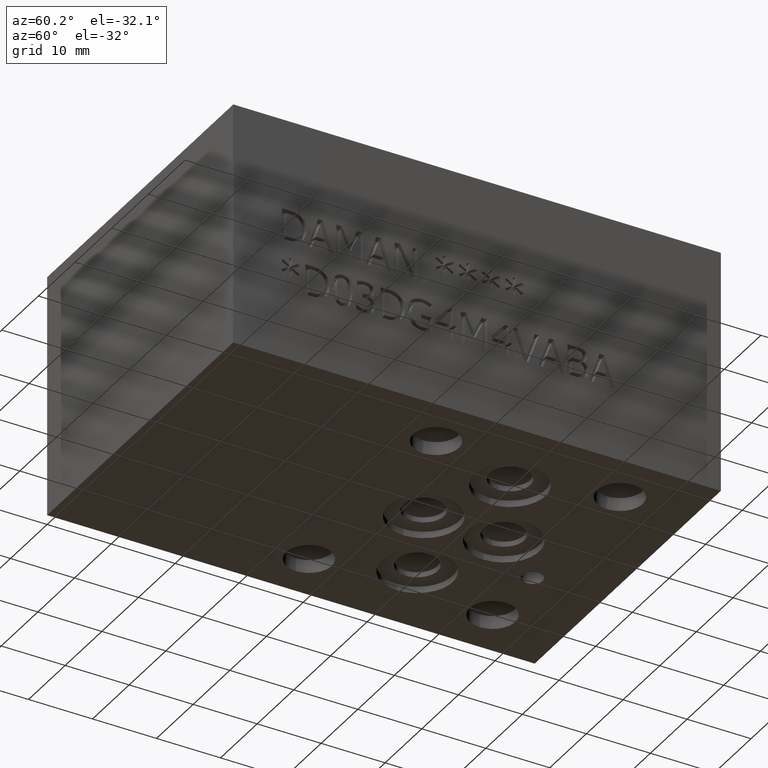
[diagram: clean part render]
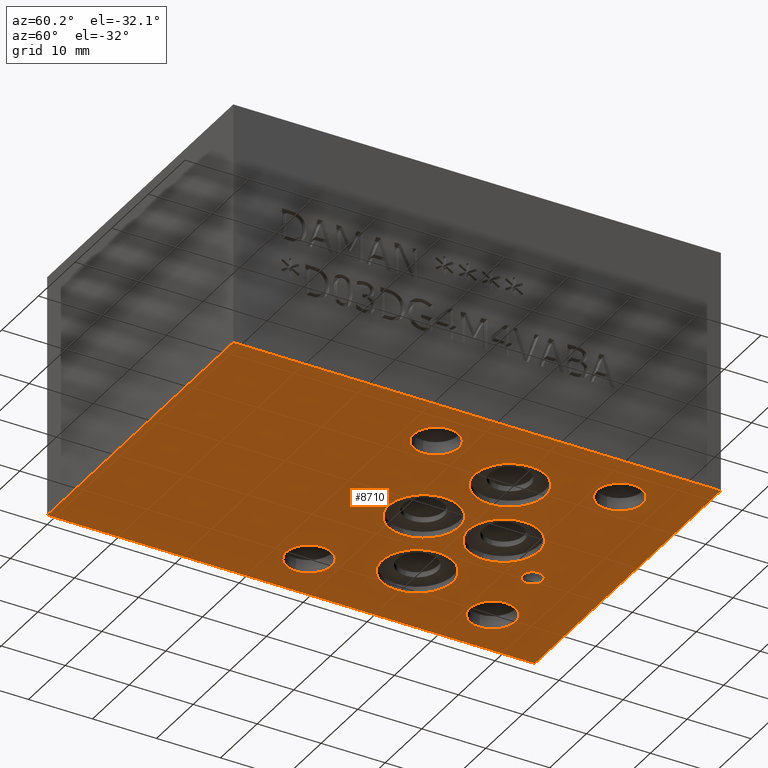
[diagram: same view with one face highlighted and labeled with its STEP entity id]
A machine part, auxiliary view. The second image highlights one B-rep face of the part: STEP entity #8710.
In plain terms, the highlighted planar face has unit normal (0, 0, 1).
Its self-contained STEP definition (entity closure, byte-faithful):
#36=CIRCLE('',#9008,5.5626);
#37=CIRCLE('',#9009,5.5626);
#41=CIRCLE('',#9015,5.5626);
#42=CIRCLE('',#9016,5.5626);
#46=CIRCLE('',#9022,5.5626);
#47=CIRCLE('',#9023,5.5626);
#51=CIRCLE('',#9029,5.5626);
#52=CIRCLE('',#9030,5.5626);
#58=CIRCLE('',#9039,1.5875);
#59=CIRCLE('',#9040,1.5875);
#70=CIRCLE('',#9061,3.5687);
#71=CIRCLE('',#9062,3.5687);
#74=CIRCLE('',#9067,3.5687);
#75=CIRCLE('',#9068,3.5687);
#78=CIRCLE('',#9073,3.5687);
#79=CIRCLE('',#9074,3.5687);
#82=CIRCLE('',#9079,3.5687);
#83=CIRCLE('',#9080,3.5687);
#502=FACE_BOUND('',#1448,.T.);
#503=FACE_BOUND('',#1449,.T.);
#504=FACE_BOUND('',#1450,.T.);
#505=FACE_BOUND('',#1451,.T.);
#506=FACE_BOUND('',#1452,.T.);
#507=FACE_BOUND('',#1453,.T.);
#508=FACE_BOUND('',#1454,.T.);
#509=FACE_BOUND('',#1455,.T.);
#510=FACE_BOUND('',#1456,.T.);
#949=FACE_OUTER_BOUND('',#1447,.T.);
#1447=EDGE_LOOP('',(#7596,#7597,#7598,#7599));
#1448=EDGE_LOOP('',(#7600,#7601));
#1449=EDGE_LOOP('',(#7602,#7603));
#1450=EDGE_LOOP('',(#7604,#7605));
#1451=EDGE_LOOP('',(#7606,#7607));
#1452=EDGE_LOOP('',(#7608,#7609));
#1453=EDGE_LOOP('',(#7610,#7611));
#1454=EDGE_LOOP('',(#7612,#7613));
#1455=EDGE_LOOP('',(#7614,#7615));
#1456=EDGE_LOOP('',(#7616,#7617));
#1907=LINE('',#13254,#2802);
#2344=LINE('',#14567,#3239);
#2348=LINE('',#14574,#3243);
#2350=LINE('',#14578,#3245);
#2802=VECTOR('',#9935,10.);
#3239=VECTOR('',#11044,10.);
#3243=VECTOR('',#11050,10.);
#3245=VECTOR('',#11056,10.);
#3647=VERTEX_POINT('',#13252);
#3648=VERTEX_POINT('',#13253);
#3913=VERTEX_POINT('',#14171);
#3914=VERTEX_POINT('',#14172);
#3918=VERTEX_POINT('',#14184);
#3919=VERTEX_POINT('',#14185);
#3923=VERTEX_POINT('',#14197);
#3924=VERTEX_POINT('',#14198);
#3928=VERTEX_POINT('',#14210);
#3929=VERTEX_POINT('',#14211);
#3936=VERTEX_POINT('',#14230);
#3937=VERTEX_POINT('',#14231);
#3953=VERTEX_POINT('',#14279);
#3954=VERTEX_POINT('',#14280);
#3958=VERTEX_POINT('',#14292);
#3959=VERTEX_POINT('',#14293);
#3963=VERTEX_POINT('',#14305);
#3964=VERTEX_POINT('',#14306);
#3968=VERTEX_POINT('',#14318);
#3969=VERTEX_POINT('',#14319);
#4059=VERTEX_POINT('',#14565);
#4060=VERTEX_POINT('',#14566);
#4663=EDGE_CURVE('',#3647,#3648,#1907,.T.);
#5060=EDGE_CURVE('',#3913,#3914,#36,.T.);
#5061=EDGE_CURVE('',#3914,#3913,#37,.T.);
#5066=EDGE_CURVE('',#3918,#3919,#41,.T.);
#5067=EDGE_CURVE('',#3919,#3918,#42,.T.);
#5072=EDGE_CURVE('',#3923,#3924,#46,.T.);
#5073=EDGE_CURVE('',#3924,#3923,#47,.T.);
#5078=EDGE_CURVE('',#3928,#3929,#51,.T.);
#5079=EDGE_CURVE('',#3929,#3928,#52,.T.);
#5087=EDGE_CURVE('',#3936,#3937,#58,.T.);
#5088=EDGE_CURVE('',#3937,#3936,#59,.T.);
#5109=EDGE_CURVE('',#3953,#3954,#70,.T.);
#5110=EDGE_CURVE('',#3954,#3953,#71,.T.);
#5115=EDGE_CURVE('',#3958,#3959,#74,.T.);
#5116=EDGE_CURVE('',#3959,#3958,#75,.T.);
#5121=EDGE_CURVE('',#3963,#3964,#78,.T.);
#5122=EDGE_CURVE('',#3964,#3963,#79,.T.);
#5127=EDGE_CURVE('',#3968,#3969,#82,.T.);
#5128=EDGE_CURVE('',#3969,#3968,#83,.T.);
#5240=EDGE_CURVE('',#4059,#4060,#2344,.T.);
#5244=EDGE_CURVE('',#3648,#4059,#2348,.T.);
#5246=EDGE_CURVE('',#4060,#3647,#2350,.T.);
#7596=ORIENTED_EDGE('',*,*,#5246,.F.);
#7597=ORIENTED_EDGE('',*,*,#5240,.F.);
#7598=ORIENTED_EDGE('',*,*,#5244,.F.);
#7599=ORIENTED_EDGE('',*,*,#4663,.F.);
#7600=ORIENTED_EDGE('',*,*,#5060,.T.);
#7601=ORIENTED_EDGE('',*,*,#5061,.T.);
#7602=ORIENTED_EDGE('',*,*,#5066,.T.);
#7603=ORIENTED_EDGE('',*,*,#5067,.T.);
#7604=ORIENTED_EDGE('',*,*,#5072,.T.);
#7605=ORIENTED_EDGE('',*,*,#5073,.T.);
#7606=ORIENTED_EDGE('',*,*,#5078,.T.);
#7607=ORIENTED_EDGE('',*,*,#5079,.T.);
#7608=ORIENTED_EDGE('',*,*,#5087,.T.);
#7609=ORIENTED_EDGE('',*,*,#5088,.T.);
#7610=ORIENTED_EDGE('',*,*,#5109,.T.);
#7611=ORIENTED_EDGE('',*,*,#5110,.T.);
#7612=ORIENTED_EDGE('',*,*,#5115,.T.);
#7613=ORIENTED_EDGE('',*,*,#5116,.T.);
#7614=ORIENTED_EDGE('',*,*,#5121,.T.);
#7615=ORIENTED_EDGE('',*,*,#5122,.T.);
#7616=ORIENTED_EDGE('',*,*,#5127,.T.);
#7617=ORIENTED_EDGE('',*,*,#5128,.T.);
#7917=PLANE('',#9204);
#8710=ADVANCED_FACE('',(#949,#502,#503,#504,#505,#506,#507,#508,#509,#510),
#7917,.F.);
#9008=AXIS2_PLACEMENT_3D('',#14173,#10604,#10605);
#9009=AXIS2_PLACEMENT_3D('',#14174,#10606,#10607);
#9015=AXIS2_PLACEMENT_3D('',#14186,#10619,#10620);
#9016=AXIS2_PLACEMENT_3D('',#14187,#10621,#10622);
#9022=AXIS2_PLACEMENT_3D('',#14199,#10634,#10635);
#9023=AXIS2_PLACEMENT_3D('',#14200,#10636,#10637);
#9029=AXIS2_PLACEMENT_3D('',#14212,#10649,#10650);
#9030=AXIS2_PLACEMENT_3D('',#14213,#10651,#10652);
#9039=AXIS2_PLACEMENT_3D('',#14232,#10671,#10672);
#9040=AXIS2_PLACEMENT_3D('',#14233,#10673,#10674);
#9061=AXIS2_PLACEMENT_3D('',#14281,#10725,#10726);
#9062=AXIS2_PLACEMENT_3D('',#14282,#10727,#10728);
#9067=AXIS2_PLACEMENT_3D('',#14294,#10739,#10740);
#9068=AXIS2_PLACEMENT_3D('',#14295,#10741,#10742);
#9073=AXIS2_PLACEMENT_3D('',#14307,#10753,#10754);
#9074=AXIS2_PLACEMENT_3D('',#14308,#10755,#10756);
#9079=AXIS2_PLACEMENT_3D('',#14320,#10767,#10768);
#9080=AXIS2_PLACEMENT_3D('',#14321,#10769,#10770);
#9204=AXIS2_PLACEMENT_3D('',#14581,#11060,#11061);
#9935=DIRECTION('',(0.,1.,0.));
#10604=DIRECTION('center_axis',(0.,0.,1.));
#10605=DIRECTION('ref_axis',(1.,0.,0.));
#10606=DIRECTION('center_axis',(0.,0.,1.));
#10607=DIRECTION('ref_axis',(1.,0.,0.));
#10619=DIRECTION('center_axis',(0.,0.,1.));
#10620=DIRECTION('ref_axis',(1.,0.,0.));
#10621=DIRECTION('center_axis',(0.,0.,1.));
#10622=DIRECTION('ref_axis',(1.,0.,0.));
#10634=DIRECTION('center_axis',(0.,0.,1.));
#10635=DIRECTION('ref_axis',(1.,0.,0.));
#10636=DIRECTION('center_axis',(0.,0.,1.));
#10637=DIRECTION('ref_axis',(1.,0.,0.));
#10649=DIRECTION('center_axis',(0.,0.,1.));
#10650=DIRECTION('ref_axis',(1.,0.,0.));
#10651=DIRECTION('center_axis',(0.,0.,1.));
#10652=DIRECTION('ref_axis',(1.,0.,0.));
#10671=DIRECTION('center_axis',(0.,0.,1.));
#10672=DIRECTION('ref_axis',(1.,0.,0.));
#10673=DIRECTION('center_axis',(0.,0.,1.));
#10674=DIRECTION('ref_axis',(1.,0.,0.));
#10725=DIRECTION('center_axis',(0.,0.,1.));
#10726=DIRECTION('ref_axis',(1.,0.,0.));
#10727=DIRECTION('center_axis',(0.,0.,1.));
#10728=DIRECTION('ref_axis',(1.,0.,0.));
#10739=DIRECTION('center_axis',(0.,0.,1.));
#10740=DIRECTION('ref_axis',(1.,0.,0.));
#10741=DIRECTION('center_axis',(0.,0.,1.));
#10742=DIRECTION('ref_axis',(1.,0.,0.));
#10753=DIRECTION('center_axis',(0.,0.,1.));
#10754=DIRECTION('ref_axis',(1.,0.,0.));
#10755=DIRECTION('center_axis',(0.,0.,1.));
#10756=DIRECTION('ref_axis',(1.,0.,0.));
#10767=DIRECTION('center_axis',(0.,0.,1.));
#10768=DIRECTION('ref_axis',(1.,0.,0.));
#10769=DIRECTION('center_axis',(0.,0.,1.));
#10770=DIRECTION('ref_axis',(1.,0.,0.));
#11044=DIRECTION('',(0.,-1.,0.));
#11050=DIRECTION('',(-1.,0.,0.));
#11056=DIRECTION('',(1.,0.,0.));
#11060=DIRECTION('center_axis',(0.,0.,1.));
#11061=DIRECTION('ref_axis',(1.,0.,0.));
#13252=CARTESIAN_POINT('',(50.8,0.,0.));
#13253=CARTESIAN_POINT('',(50.8,76.2,0.));
#13254=CARTESIAN_POINT('',(50.8,0.,0.));
#14171=CARTESIAN_POINT('',(30.6832,44.4754,0.));
#14172=CARTESIAN_POINT('',(19.558,44.4754,0.));
#14173=CARTESIAN_POINT('Origin',(25.1206,44.4754,0.));
#14174=CARTESIAN_POINT('Origin',(25.1206,44.4754,0.));
#14184=CARTESIAN_POINT('',(43.3832,50.673,0.));
#14185=CARTESIAN_POINT('',(32.258,50.673,0.));
#14186=CARTESIAN_POINT('Origin',(37.8206,50.673,0.));
#14187=CARTESIAN_POINT('Origin',(37.8206,50.673,0.));
#14197=CARTESIAN_POINT('',(30.6832,56.9722,0.));
#14198=CARTESIAN_POINT('',(19.558,56.9722,0.));
#14199=CARTESIAN_POINT('Origin',(25.1206,56.9722,0.));
#14200=CARTESIAN_POINT('Origin',(25.1206,56.9722,0.));
#14210=CARTESIAN_POINT('',(18.0848,50.673,0.));
#14211=CARTESIAN_POINT('',(6.9596,50.673,0.));
#14212=CARTESIAN_POINT('Origin',(12.5222,50.673,0.));
#14213=CARTESIAN_POINT('Origin',(12.5222,50.673,0.));
#14230=CARTESIAN_POINT('',(20.4089,65.0748,0.));
#14231=CARTESIAN_POINT('',(17.2339,65.0748,0.));
#14232=CARTESIAN_POINT('Origin',(18.8214,65.0748,0.));
#14233=CARTESIAN_POINT('Origin',(18.8214,65.0748,0.));
#14279=CARTESIAN_POINT('',(11.5189,36.3728,0.));
#14280=CARTESIAN_POINT('',(4.3815,36.3728,0.));
#14281=CARTESIAN_POINT('Origin',(7.9502,36.3728,0.));
#14282=CARTESIAN_POINT('Origin',(7.9502,36.3728,0.));
#14292=CARTESIAN_POINT('',(46.1899,36.3728,0.));
#14293=CARTESIAN_POINT('',(39.0525,36.3728,0.));
#14294=CARTESIAN_POINT('Origin',(42.6212,36.3728,0.));
#14295=CARTESIAN_POINT('Origin',(42.6212,36.3728,0.));
#14305=CARTESIAN_POINT('',(11.4935,65.0748,0.));
#14306=CARTESIAN_POINT('',(4.3561,65.0748,0.));
#14307=CARTESIAN_POINT('Origin',(7.9248,65.0748,0.));
#14308=CARTESIAN_POINT('Origin',(7.9248,65.0748,0.));
#14318=CARTESIAN_POINT('',(46.1899,65.1002,0.));
#14319=CARTESIAN_POINT('',(39.0525,65.1002,0.));
#14320=CARTESIAN_POINT('Origin',(42.6212,65.1002,0.));
#14321=CARTESIAN_POINT('Origin',(42.6212,65.1002,0.));
#14565=CARTESIAN_POINT('',(0.,76.2,0.));
#14566=CARTESIAN_POINT('',(0.,0.,0.));
#14567=CARTESIAN_POINT('',(0.,76.2,0.));
#14574=CARTESIAN_POINT('',(50.8,76.2,0.));
#14578=CARTESIAN_POINT('',(0.,0.,0.));
#14581=CARTESIAN_POINT('Origin',(25.4,38.1,0.));